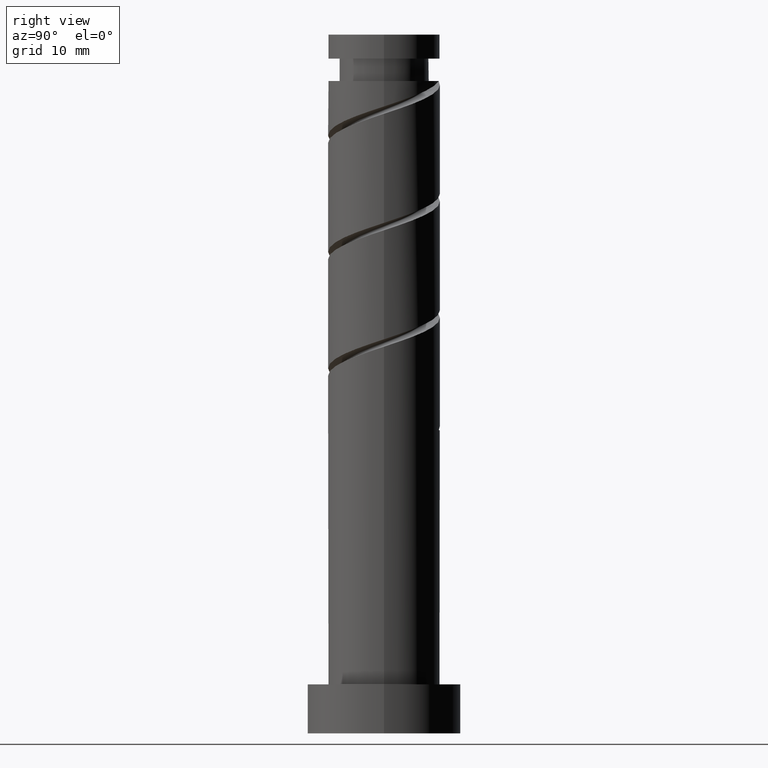
[diagram: clean part render]
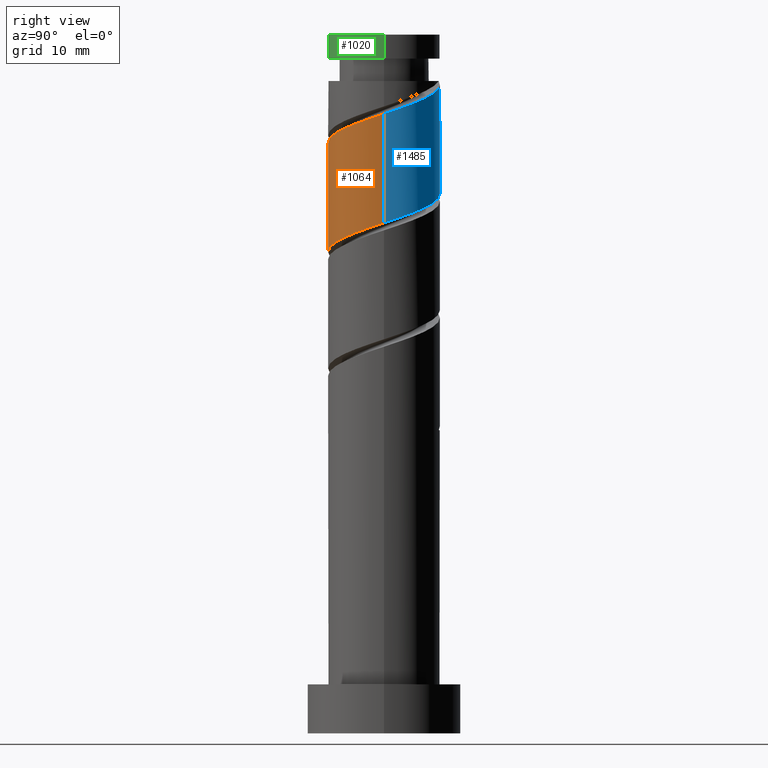
[diagram: same view with three faces highlighted in distinct colors, each labeled with its STEP entity id]
A machine part, right view with three faces highlighted in distinct colors.
Their STEP definitions:

[orange] entity #1064 — the highlighted cylindrical surface (partial cylindrical patch) has radius 8 mm, axis along (-0, -0, -1).
#23 = CARTESIAN_POINT ( 'NONE',  ( 6.927952113231005349, -4.241852965488890348, 71.61337937746236548 ) ) ;
#40 = CARTESIAN_POINT ( 'NONE',  ( -4.177409687551281614, -6.822700953607208518, 67.44671271079569408 ) ) ;
#51 = CARTESIAN_POINT ( 'NONE',  ( -2.580508690206642530, -7.702649671627100680, 83.65041641449938936 ) ) ;
#76 = CARTESIAN_POINT ( 'NONE',  ( -6.927952113231022224, -4.241852965488892124, 81.79856456264754172 ) ) ;
#83 = CARTESIAN_POINT ( 'NONE',  ( 5.380435946977611295, -6.086110916219012346, 86.42819419227716082 ) ) ;
#84 = AXIS2_PLACEMENT_3D ( 'NONE', #424, #1339, #168 ) ;
#115 = ORIENTED_EDGE ( 'NONE', *, *, #1036, .F. ) ;
#123 = VERTEX_POINT ( 'NONE', #833 ) ;
#152 = CARTESIAN_POINT ( 'NONE',  ( 5.993649215984702572, -5.298695035169129319, 71.15041641449940357 ) ) ;
#168 = DIRECTION ( 'NONE',  ( -1.000000000000000000, 0.000000000000000000, 0.000000000000000000 ) ) ;
#261 = CARTESIAN_POINT ( 'NONE',  ( 1.185466159795203867, -7.911679340315834530, 69.29856456264755593 ) ) ;
#281 = CARTESIAN_POINT ( 'NONE',  ( 4.177409687551286055, -6.822700953607219176, 85.96523122931419891 ) ) ;
#285 = ORIENTED_EDGE ( 'NONE', *, *, #1329, .F. ) ;
#286 = CARTESIAN_POINT ( 'NONE',  ( -7.444448375207636026, -2.929195860448490230, 81.33560159968457981 ) ) ;
#314 = CARTESIAN_POINT ( 'NONE',  ( -8.000000000000014211, -3.973765101473716787E-15, 80.34178374839950720 ) ) ;
#316 = VERTEX_POINT ( 'NONE', #942 ) ;
#373 = CARTESIAN_POINT ( 'NONE',  ( 8.000000000000000000, 1.165239390657716417E-15, 73.07016019171038579 ) ) ;
#375 = CARTESIAN_POINT ( 'NONE',  ( 8.000000000000000000, 1.165239390657716417E-15, 73.07016019171038579 ) ) ;
#383 = CARTESIAN_POINT ( 'NONE',  ( 5.059346318738396242, -6.355537104849367402, 70.68745345153644166 ) ) ;
#392 = CARTESIAN_POINT ( 'NONE',  ( -5.380435946977605077, -6.086110916218999911, 66.98374974783271796 ) ) ;
#410 = CARTESIAN_POINT ( 'NONE',  ( 6.258982215412427941, -4.982483479867354959, 86.89115715524013694 ) ) ;
#418 = CARTESIAN_POINT ( 'NONE',  ( -8.000000000000000000, 0.000000000000000000, 100.0000000000000000 ) ) ;
#424 = CARTESIAN_POINT ( 'NONE',  ( 0.000000000000000000, 0.000000000000000000, 100.0000000000000000 ) ) ;
#507 =( BOUNDED_CURVE ( )  B_SPLINE_CURVE ( 2, ( #524, #1441, #515, #742, #286, #76, #1010, #987, #1095, #51, #1108, #1427, #1323, #1224, #281, #83, #410, #751, #663, #996, #1333 ),
 .UNSPECIFIED., .F., .T. ) 
 B_SPLINE_CURVE_WITH_KNOTS ( ( 3, 2, 2, 2, 2, 2, 2, 2, 2, 2, 3 ),
 ( 0.5545248053855290626, 0.5555555555555555802, 0.5694444444444444198, 0.5833333333333332593, 0.5972222222222222099, 0.6111111111111111605, 0.6250000000000000000, 0.6388888888888888395, 0.6527777777777777901, 0.6666666666666667407, 0.6795248053855291737 ),
 .UNSPECIFIED. ) 
 CURVE ( )  GEOMETRIC_REPRESENTATION_ITEM ( )  RATIONAL_B_SPLINE_CURVE ( ( 0.9071930855141274730, 0.9080659294509751955, 0.9090909090909153889, 0.8952797754656497409, 0.9090909090909153889, 0.8952797754656497409, 0.9090909090909153889, 0.8952797754656497409, 0.9090909090909153889, 0.8952797754656497409, 0.9090909090909153889, 0.8952797754656497409, 0.9090909090909153889, 0.8952797754656497409, 0.9090909090909153889, 0.8952797754656497409, 0.9090909090909153889, 0.8952797754656497409, 0.9090909090909153889, 0.8963047551055897122, 0.9071930855141279171 ) ) 
 REPRESENTATION_ITEM ( '' )  );
#515 = CARTESIAN_POINT ( 'NONE',  ( -7.997337192023812769, -0.2063924346310180291, 80.40967567375864178 ) ) ;
#524 = CARTESIAN_POINT ( 'NONE',  ( -8.000000000000014211, -3.973765101473716787E-15, 80.34178374839952141 ) ) ;
#531 = FACE_OUTER_BOUND ( 'NONE', #1107, .T. ) ;
#603 = CARTESIAN_POINT ( 'NONE',  ( 7.997337192023797670, -0.2063924346310224700, 73.00226826635122279 ) ) ;
#623 = CARTESIAN_POINT ( 'NONE',  ( -1.591979899370592921, -7.839999999999999858, 68.37263863672161790 ) ) ;
#650 = LINE ( 'NONE', #418, #1120 ) ;
#656 = VERTEX_POINT ( 'NONE', #314 ) ;
#657 = CARTESIAN_POINT ( 'NONE',  ( -7.999999999999998224, -3.973765101473750708E-15, 64.73682685837704298 ) ) ;
#663 = CARTESIAN_POINT ( 'NONE',  ( 7.585629115355304819, -2.541304964830882529, 87.81708308116603234 ) ) ;
#742 = CARTESIAN_POINT ( 'NONE',  ( -7.960944637184256045, -1.616538755408090333, 80.87263863672163211 ) ) ;
#751 = CARTESIAN_POINT ( 'NONE',  ( 7.137528483847245475, -3.878856043515705565, 87.35412011820307043 ) ) ;
#812 = CARTESIAN_POINT ( 'NONE',  ( 8.000000000000000000, 9.797174393178823685E-16, 100.0000000000000000 ) ) ;
#833 = CARTESIAN_POINT ( 'NONE',  ( -7.999999999999998224, -3.973765101473750708E-15, 64.73682685837704298 ) ) ;
#848 = CARTESIAN_POINT ( 'NONE',  ( 3.819927504472515167, -7.029093388238227824, 70.22449048857345133 ) ) ;
#856 = CARTESIAN_POINT ( 'NONE',  ( -0.2095763706162292184, -8.120709009004581702, 68.83560159968457981 ) ) ;
#866 =( BOUNDED_CURVE ( )  B_SPLINE_CURVE ( 2, ( #375, #954, #603, #1071, #1411, #23, #152, #383, #848, #1299, #261, #856, #623, #1086, #40, #392, #1276, #1207, #1114, #1448, #657 ),
 .UNSPECIFIED., .F., .F. ) 
 B_SPLINE_CURVE_WITH_KNOTS ( ( 3, 2, 2, 2, 2, 2, 2, 2, 2, 2, 3 ),
 ( 0.5545248053855290626, 0.5555555555555555802, 0.5694444444444444198, 0.5833333333333333703, 0.5972222222222222099, 0.6111111111111111605, 0.6250000000000000000, 0.6388888888888888395, 0.6527777777777777901, 0.6666666666666666297, 0.6795248053855290626 ),
 .UNSPECIFIED. ) 
 CURVE ( )  GEOMETRIC_REPRESENTATION_ITEM ( )  RATIONAL_B_SPLINE_CURVE ( ( 0.9071930855141200345, 0.9080659294509676460, 0.9090909090909077284, 0.8952797754656424134, 0.9090909090909077284, 0.8952797754656424134, 0.9090909090909077284, 0.8952797754656424134, 0.9090909090909077284, 0.8952797754656424134, 0.9090909090909077284, 0.8952797754656424134, 0.9090909090909077284, 0.8952797754656424134, 0.9090909090909077284, 0.8952797754656424134, 0.9090909090909077284, 0.8952797754656424134, 0.9090909090909077284, 0.8963047551055824957, 0.9071930855141200345 ) ) 
 REPRESENTATION_ITEM ( '' )  );
#891 = DIRECTION ( 'NONE',  ( -0.000000000000000000, -0.000000000000000000, -1.000000000000000000 ) ) ;
#942 = CARTESIAN_POINT ( 'NONE',  ( 8.000000000000012434, 3.839314402551674390E-15, 88.67511708173283580 ) ) ;
#954 = CARTESIAN_POINT ( 'NONE',  ( 8.000000000000000000, -0.1032133946561695215, 73.03614281777801409 ) ) ;
#987 = CARTESIAN_POINT ( 'NONE',  ( -5.059346318738408677, -6.355537104849378949, 82.72449048857345133 ) ) ;
#996 = CARTESIAN_POINT ( 'NONE',  ( 8.000000000000017764, -1.304434974563652316, 88.24519756936722104 ) ) ;
#1005 = EDGE_CURVE ( 'NONE', #1433, #123, #866, .T. ) ;
#1010 = CARTESIAN_POINT ( 'NONE',  ( -5.993649215984715006, -5.298695035169131984, 82.26152752561050363 ) ) ;
#1032 = DIRECTION ( 'NONE',  ( -0.000000000000000000, -0.000000000000000000, -1.000000000000000000 ) ) ;
#1036 = EDGE_CURVE ( 'NONE', #656, #316, #507, .T. ) ;
#1064 = ADVANCED_FACE ( 'NONE', ( #531 ), #1215, .T. ) ;
#1071 = CARTESIAN_POINT ( 'NONE',  ( 7.960944637184241834, -1.616538755408090555, 72.53930530338830351 ) ) ;
#1086 = CARTESIAN_POINT ( 'NONE',  ( -2.974383428124959483, -7.559290990995414461, 67.90967567375865599 ) ) ;
#1094 = ORIENTED_EDGE ( 'NONE', *, *, #1005, .F. ) ;
#1095 = CARTESIAN_POINT ( 'NONE',  ( -3.819927504472524937, -7.029093388238237594, 83.18745345153641324 ) ) ;
#1107 = EDGE_LOOP ( 'NONE', ( #285, #115, #1347, #1094 ) ) ;
#1108 = CARTESIAN_POINT ( 'NONE',  ( -1.185466159795209196, -7.911679340315847853, 84.11337937746235127 ) ) ;
#1114 = CARTESIAN_POINT ( 'NONE',  ( -7.585629115355295049, -2.541304964830871427, 65.59486085894384644 ) ) ;
#1120 = VECTOR ( 'NONE', #891, 1000.000000000000000 ) ;
#1139 = LINE ( 'NONE', #812, #1164 ) ;
#1164 = VECTOR ( 'NONE', #1032, 1000.000000000000000 ) ;
#1167 = EDGE_CURVE ( 'NONE', #656, #123, #650, .T. ) ;
#1207 = CARTESIAN_POINT ( 'NONE',  ( -7.137528483847234817, -3.878856043515695351, 66.05782382190679414 ) ) ;
#1215 = CYLINDRICAL_SURFACE ( 'NONE', #84, 8.000000000000000000 ) ;
#1224 = CARTESIAN_POINT ( 'NONE',  ( 2.974383428124958595, -7.559290990995432225, 85.50226826635125121 ) ) ;
#1276 = CARTESIAN_POINT ( 'NONE',  ( -6.258982215412419947, -4.982483479867346077, 66.52078678486978447 ) ) ;
#1299 = CARTESIAN_POINT ( 'NONE',  ( 2.580508690206633204, -7.702649671627087358, 69.76152752561050363 ) ) ;
#1323 = CARTESIAN_POINT ( 'NONE',  ( 1.591979899370591589, -7.840000000000013181, 85.03930530338826088 ) ) ;
#1329 = EDGE_CURVE ( 'NONE', #316, #1433, #1139, .T. ) ;
#1333 = CARTESIAN_POINT ( 'NONE',  ( 8.000000000000012434, 3.839314402551674390E-15, 88.67511708173283580 ) ) ;
#1339 = DIRECTION ( 'NONE',  ( -0.000000000000000000, -0.000000000000000000, -1.000000000000000000 ) ) ;
#1347 = ORIENTED_EDGE ( 'NONE', *, *, #1167, .T. ) ;
#1411 = CARTESIAN_POINT ( 'NONE',  ( 7.444448375207623592, -2.929195860448486677, 72.07634234042532739 ) ) ;
#1427 = CARTESIAN_POINT ( 'NONE',  ( 0.2095763706162223905, -8.120709009004597689, 84.57634234042532739 ) ) ;
#1433 = VERTEX_POINT ( 'NONE', #373 ) ;
#1441 = CARTESIAN_POINT ( 'NONE',  ( -8.000000000000015987, -0.1032133946561639704, 80.37580112233189311 ) ) ;
#1448 = CARTESIAN_POINT ( 'NONE',  ( -7.999999999999998224, -1.304434974563652760, 65.16674637074264353 ) ) ;

[blue] entity #1485 — the highlighted cylindrical surface (partial cylindrical patch) has radius 8 mm, axis along (-0, -0, -1).
#11 = CARTESIAN_POINT ( 'NONE',  ( 7.444448375207638691, 2.929195860448487565, 89.66893493301787998 ) ) ;
#17 = CARTESIAN_POINT ( 'NONE',  ( 2.580508690206646527, 7.702649671627098904, 91.98374974783273217 ) ) ;
#25 = CARTESIAN_POINT ( 'NONE',  ( -1.591979899370640439, 7.840000000000008740, 93.37263863672163211 ) ) ;
#59 = CARTESIAN_POINT ( 'NONE',  ( -8.000000000000000000, 0.000000000000000000, 100.0000000000000000 ) ) ;
#64 = DIRECTION ( 'NONE',  ( -0.000000000000000000, -0.000000000000000000, -1.000000000000000000 ) ) ;
#88 = CARTESIAN_POINT ( 'NONE',  ( -8.000000000000000000, -4.810347228099804734E-15, 81.40349352504374281 ) ) ;
#143 = DIRECTION ( 'NONE',  ( -0.000000000000000000, -0.000000000000000000, -1.000000000000000000 ) ) ;
#154 = CARTESIAN_POINT ( 'NONE',  ( -0.2095763706162473983, 8.120709009004601242, 92.90967567375865599 ) ) ;
#180 = EDGE_CURVE ( 'NONE', #316, #1002, #980, .T. ) ;
#203 = CARTESIAN_POINT ( 'NONE',  ( 7.585629115355295049, 2.541304964830874535, 73.92819419227716082 ) ) ;
#208 = CARTESIAN_POINT ( 'NONE',  ( 5.380435946977608630, 6.086110916218995470, 75.31708308116603234 ) ) ;
#271 = CARTESIAN_POINT ( 'NONE',  ( 5.993649215984712342, 5.298695035169134648, 90.59486085894383223 ) ) ;
#292 = ORIENTED_EDGE ( 'NONE', *, *, #1381, .F. ) ;
#297 = CARTESIAN_POINT ( 'NONE',  ( 0.000000000000000000, 0.000000000000000000, 93.37263863672161790 ) ) ;
#316 = VERTEX_POINT ( 'NONE', #942 ) ;
#323 = CARTESIAN_POINT ( 'NONE',  ( -7.960944637184241834, 1.616538755408089667, 80.87263863672163211 ) ) ;
#341 = CARTESIAN_POINT ( 'NONE',  ( 2.974383428124957263, 7.559290990995414461, 76.24300900709199880 ) ) ;
#373 = CARTESIAN_POINT ( 'NONE',  ( 8.000000000000000000, 1.165239390657716417E-15, 73.07016019171038579 ) ) ;
#431 = CARTESIAN_POINT ( 'NONE',  ( 4.177409687551286055, 6.822700953607205854, 75.78004604412903689 ) ) ;
#440 = CARTESIAN_POINT ( 'NONE',  ( 8.000000000000000000, 1.165239390657716417E-15, 73.07016019171038579 ) ) ;
#447 = CARTESIAN_POINT ( 'NONE',  ( -7.999999999999998224, 0.1032133946561607923, 81.36947615111134269 ) ) ;
#471 = ORIENTED_EDGE ( 'NONE', *, *, #526, .T. ) ;
#483 = CARTESIAN_POINT ( 'NONE',  ( 6.927952113231024001, 4.241852965488887683, 90.13189789598087032 ) ) ;
#490 = CARTESIAN_POINT ( 'NONE',  ( 7.960944637184256045, 1.616538755408089001, 89.20597197005493229 ) ) ;
#526 = EDGE_CURVE ( 'NONE', #611, #1002, #1166, .T. ) ;
#530 = ORIENTED_EDGE ( 'NONE', *, *, #180, .F. ) ;
#547 = LINE ( 'NONE', #59, #591 ) ;
#551 = DIRECTION ( 'NONE',  ( -1.000000000000000000, 0.000000000000000000, 0.000000000000000000 ) ) ;
#558 = CARTESIAN_POINT ( 'NONE',  ( -1.185466159795204533, 7.911679340315834530, 77.63189789598088453 ) ) ;
#577 = CARTESIAN_POINT ( 'NONE',  ( -5.993649215984703460, 5.298695035169128431, 79.48374974783270375 ) ) ;
#591 = VECTOR ( 'NONE', #1230, 1000.000000000000000 ) ;
#611 = VERTEX_POINT ( 'NONE', #1012 ) ;
#612 = CARTESIAN_POINT ( 'NONE',  ( -1.591979899370640439, 7.840000000000008740, 93.37263863672163211 ) ) ;
#614 =( BOUNDED_CURVE ( )  B_SPLINE_CURVE ( 2, ( #1019, #447, #1459, #323, #1369, #668, #577, #1465, #790, #1046, #558, #919, #1265, #341, #431, #208, #1026, #1244, #203, #1133, #440 ),
 .UNSPECIFIED., .F., .F. ) 
 B_SPLINE_CURVE_WITH_KNOTS ( ( 3, 2, 2, 2, 2, 2, 2, 2, 2, 2, 3 ),
 ( 0.4295248053855290071, 0.4305555555555555802, 0.4444444444444444198, 0.4583333333333333148, 0.4722222222222222099, 0.4861111111111111049, 0.5000000000000000000, 0.5138888888888888395, 0.5277777777777777901, 0.5416666666666666297, 0.5545248053855290626 ),
 .UNSPECIFIED. ) 
 CURVE ( )  GEOMETRIC_REPRESENTATION_ITEM ( )  RATIONAL_B_SPLINE_CURVE ( ( 0.9071930855141200345, 0.9080659294509676460, 0.9090909090909077284, 0.8952797754656424134, 0.9090909090909077284, 0.8952797754656424134, 0.9090909090909077284, 0.8952797754656424134, 0.9090909090909077284, 0.8952797754656424134, 0.9090909090909077284, 0.8952797754656424134, 0.9090909090909077284, 0.8952797754656424134, 0.9090909090909077284, 0.8952797754656424134, 0.9090909090909077284, 0.8952797754656424134, 0.9090909090909077284, 0.8963047551055824957, 0.9071930855141200345 ) ) 
 REPRESENTATION_ITEM ( '' )  );
#668 = CARTESIAN_POINT ( 'NONE',  ( -6.927952113231008902, 4.241852965488885907, 79.94671271079569408 ) ) ;
#685 = AXIS2_PLACEMENT_3D ( 'NONE', #297, #64, #551 ) ;
#711 = CARTESIAN_POINT ( 'NONE',  ( 8.000000000000012434, 0.1032133946561752530, 88.70913445566520750 ) ) ;
#733 = CARTESIAN_POINT ( 'NONE',  ( 8.000000000000012434, 3.839314402551674390E-15, 88.67511708173283580 ) ) ;
#741 = ORIENTED_EDGE ( 'NONE', *, *, #1329, .T. ) ;
#790 = CARTESIAN_POINT ( 'NONE',  ( -3.819927504472515167, 7.029093388238227824, 78.55782382190680835 ) ) ;
#812 = CARTESIAN_POINT ( 'NONE',  ( 8.000000000000000000, 9.797174393178823685E-16, 100.0000000000000000 ) ) ;
#829 = DIRECTION ( 'NONE',  ( -1.000000000000000000, 0.000000000000000000, 0.000000000000000000 ) ) ;
#919 = CARTESIAN_POINT ( 'NONE',  ( 0.2095763706162262208, 8.120709009004581702, 77.16893493301790841 ) ) ;
#942 = CARTESIAN_POINT ( 'NONE',  ( 8.000000000000012434, 3.839314402551674390E-15, 88.67511708173283580 ) ) ;
#948 = CARTESIAN_POINT ( 'NONE',  ( 7.997337192023808328, 0.2063924346310186397, 88.74300900709197037 ) ) ;
#952 = FACE_OUTER_BOUND ( 'NONE', #1223, .T. ) ;
#980 =( BOUNDED_CURVE ( )  B_SPLINE_CURVE ( 2, ( #733, #711, #948, #490, #11, #483, #271, #1284, #1407, #17, #1390, #154, #25 ),
 .UNSPECIFIED., .F., .T. ) 
 B_SPLINE_CURVE_WITH_KNOTS ( ( 3, 2, 2, 2, 2, 2, 3 ),
 ( 0.6795248053855291737, 0.6805555555555555802, 0.6944444444444444198, 0.7083333333333333703, 0.7222222222222223209, 0.7361111111111113825, 0.7500000000000002220 ),
 .UNSPECIFIED. ) 
 CURVE ( )  GEOMETRIC_REPRESENTATION_ITEM ( )  RATIONAL_B_SPLINE_CURVE ( ( 0.9071930855141279171, 0.9080659294509754176, 0.9090909090909153889, 0.8952797754656497409, 0.9090909090909153889, 0.8952797754656497409, 0.9090909090909153889, 0.8952797754656497409, 0.9090909090909153889, 0.8952797754656497409, 0.9090909090909153889, 0.8952797754656495188, 0.9090909090909156109 ) ) 
 REPRESENTATION_ITEM ( '' )  );
#1002 = VERTEX_POINT ( 'NONE', #612 ) ;
#1012 = CARTESIAN_POINT ( 'NONE',  ( -8.000000000000001776, 0.000000000000000000, 93.37263863672161790 ) ) ;
#1019 = CARTESIAN_POINT ( 'NONE',  ( -8.000000000000000000, -4.810347228099804734E-15, 81.40349352504374281 ) ) ;
#1026 = CARTESIAN_POINT ( 'NONE',  ( 6.258982215412419947, 4.982483479867345189, 74.85412011820309885 ) ) ;
#1032 = DIRECTION ( 'NONE',  ( -0.000000000000000000, -0.000000000000000000, -1.000000000000000000 ) ) ;
#1046 = CARTESIAN_POINT ( 'NONE',  ( -2.580508690206635869, 7.702649671627087358, 78.09486085894386065 ) ) ;
#1133 = CARTESIAN_POINT ( 'NONE',  ( 7.999999999999998224, 1.304434974563648542, 73.50007970407600055 ) ) ;
#1139 = LINE ( 'NONE', #812, #1164 ) ;
#1141 = EDGE_CURVE ( 'NONE', #611, #1289, #547, .T. ) ;
#1164 = VECTOR ( 'NONE', #1032, 1000.000000000000000 ) ;
#1166 = CIRCLE ( 'NONE', #685, 8.000000000000001776 ) ;
#1182 = ORIENTED_EDGE ( 'NONE', *, *, #1141, .F. ) ;
#1223 = EDGE_LOOP ( 'NONE', ( #530, #741, #292, #1182, #471 ) ) ;
#1230 = DIRECTION ( 'NONE',  ( -0.000000000000000000, -0.000000000000000000, -1.000000000000000000 ) ) ;
#1244 = CARTESIAN_POINT ( 'NONE',  ( 7.137528483847234817, 3.878856043515694907, 74.39115715524015116 ) ) ;
#1265 = CARTESIAN_POINT ( 'NONE',  ( 1.591979899370593587, 7.839999999999999858, 76.70597197005496071 ) ) ;
#1284 = CARTESIAN_POINT ( 'NONE',  ( 5.059346318738408677, 6.355537104849378061, 91.05782382190680835 ) ) ;
#1289 = VERTEX_POINT ( 'NONE', #88 ) ;
#1329 = EDGE_CURVE ( 'NONE', #316, #1433, #1139, .T. ) ;
#1354 = AXIS2_PLACEMENT_3D ( 'NONE', #1403, #143, #829 ) ;
#1369 = CARTESIAN_POINT ( 'NONE',  ( -7.444448375207623592, 2.929195860448488009, 80.40967567375864178 ) ) ;
#1381 = EDGE_CURVE ( 'NONE', #1289, #1433, #614, .T. ) ;
#1387 = CYLINDRICAL_SURFACE ( 'NONE', #1354, 8.000000000000000000 ) ;
#1390 = CARTESIAN_POINT ( 'NONE',  ( 1.185466159795214303, 7.911679340315846076, 92.44671271079566566 ) ) ;
#1403 = CARTESIAN_POINT ( 'NONE',  ( 0.000000000000000000, 0.000000000000000000, 100.0000000000000000 ) ) ;
#1407 = CARTESIAN_POINT ( 'NONE',  ( 3.819927504472527158, 7.029093388238237594, 91.52078678486972763 ) ) ;
#1433 = VERTEX_POINT ( 'NONE', #373 ) ;
#1459 = CARTESIAN_POINT ( 'NONE',  ( -7.997337192023796781, 0.2063924346310200275, 81.33560159968459402 ) ) ;
#1465 = CARTESIAN_POINT ( 'NONE',  ( -5.059346318738397130, 6.355537104849367402, 79.02078678486975605 ) ) ;
#1485 = ADVANCED_FACE ( 'NONE', ( #952 ), #1387, .T. ) ;

[green] entity #1020 — the highlighted cylindrical surface (partial cylindrical patch) has radius 8 mm, axis along (-0, -0, -1).
#2 = DIRECTION ( 'NONE',  ( 1.000000000000000000, 0.000000000000000000, 0.000000000000000000 ) ) ;
#8 = CARTESIAN_POINT ( 'NONE',  ( -8.000000000000000000, 0.000000000000000000, 100.0000000000000000 ) ) ;
#27 = EDGE_CURVE ( 'NONE', #823, #160, #1342, .T. ) ;
#60 = CIRCLE ( 'NONE', #464, 8.000000000000000000 ) ;
#160 = VERTEX_POINT ( 'NONE', #264 ) ;
#167 = ORIENTED_EDGE ( 'NONE', *, *, #27, .F. ) ;
#187 = VERTEX_POINT ( 'NONE', #244 ) ;
#201 = DIRECTION ( 'NONE',  ( -0.000000000000000000, -0.000000000000000000, -1.000000000000000000 ) ) ;
#244 = CARTESIAN_POINT ( 'NONE',  ( -8.000000000000000000, 0.000000000000000000, 100.0000000000000000 ) ) ;
#260 = VERTEX_POINT ( 'NONE', #1025 ) ;
#264 = CARTESIAN_POINT ( 'NONE',  ( 8.000000000000001776, 9.797174393178825657E-16, 96.57263863672160653 ) ) ;
#326 = CARTESIAN_POINT ( 'NONE',  ( 8.000000000000000000, 9.797174393178823685E-16, 100.0000000000000000 ) ) ;
#335 = DIRECTION ( 'NONE',  ( -0.000000000000000000, -0.000000000000000000, -1.000000000000000000 ) ) ;
#462 = AXIS2_PLACEMENT_3D ( 'NONE', #804, #335, #1473 ) ;
#464 = AXIS2_PLACEMENT_3D ( 'NONE', #817, #694, #2 ) ;
#539 = CYLINDRICAL_SURFACE ( 'NONE', #548, 8.000000000000000000 ) ;
#548 = AXIS2_PLACEMENT_3D ( 'NONE', #758, #876, #1315 ) ;
#613 = CIRCLE ( 'NONE', #462, 8.000000000000001776 ) ;
#631 = FACE_OUTER_BOUND ( 'NONE', #1153, .T. ) ;
#637 = ORIENTED_EDGE ( 'NONE', *, *, #1401, .T. ) ;
#694 = DIRECTION ( 'NONE',  ( 0.000000000000000000, 0.000000000000000000, 1.000000000000000000 ) ) ;
#695 = CARTESIAN_POINT ( 'NONE',  ( 8.000000000000000000, 9.797174393178823685E-16, 100.0000000000000000 ) ) ;
#758 = CARTESIAN_POINT ( 'NONE',  ( 0.000000000000000000, 0.000000000000000000, 100.0000000000000000 ) ) ;
#804 = CARTESIAN_POINT ( 'NONE',  ( 0.000000000000000000, 0.000000000000000000, 96.57263863672160653 ) ) ;
#817 = CARTESIAN_POINT ( 'NONE',  ( 0.000000000000000000, 0.000000000000000000, 100.0000000000000000 ) ) ;
#823 = VERTEX_POINT ( 'NONE', #326 ) ;
#837 = VECTOR ( 'NONE', #1296, 1000.000000000000000 ) ;
#870 = EDGE_CURVE ( 'NONE', #187, #823, #60, .T. ) ;
#876 = DIRECTION ( 'NONE',  ( -0.000000000000000000, -0.000000000000000000, -1.000000000000000000 ) ) ;
#1020 = ADVANCED_FACE ( 'NONE', ( #631 ), #539, .T. ) ;
#1025 = CARTESIAN_POINT ( 'NONE',  ( -8.000000000000001776, 0.000000000000000000, 96.57263863672160653 ) ) ;
#1070 = ORIENTED_EDGE ( 'NONE', *, *, #870, .F. ) ;
#1153 = EDGE_LOOP ( 'NONE', ( #167, #1070, #637, #1213 ) ) ;
#1170 = VECTOR ( 'NONE', #201, 1000.000000000000000 ) ;
#1213 = ORIENTED_EDGE ( 'NONE', *, *, #1216, .F. ) ;
#1216 = EDGE_CURVE ( 'NONE', #160, #260, #613, .T. ) ;
#1250 = LINE ( 'NONE', #8, #837 ) ;
#1296 = DIRECTION ( 'NONE',  ( -0.000000000000000000, -0.000000000000000000, -1.000000000000000000 ) ) ;
#1315 = DIRECTION ( 'NONE',  ( -1.000000000000000000, 0.000000000000000000, 0.000000000000000000 ) ) ;
#1342 = LINE ( 'NONE', #695, #1170 ) ;
#1401 = EDGE_CURVE ( 'NONE', #187, #260, #1250, .T. ) ;
#1473 = DIRECTION ( 'NONE',  ( -1.000000000000000000, 0.000000000000000000, 0.000000000000000000 ) ) ;